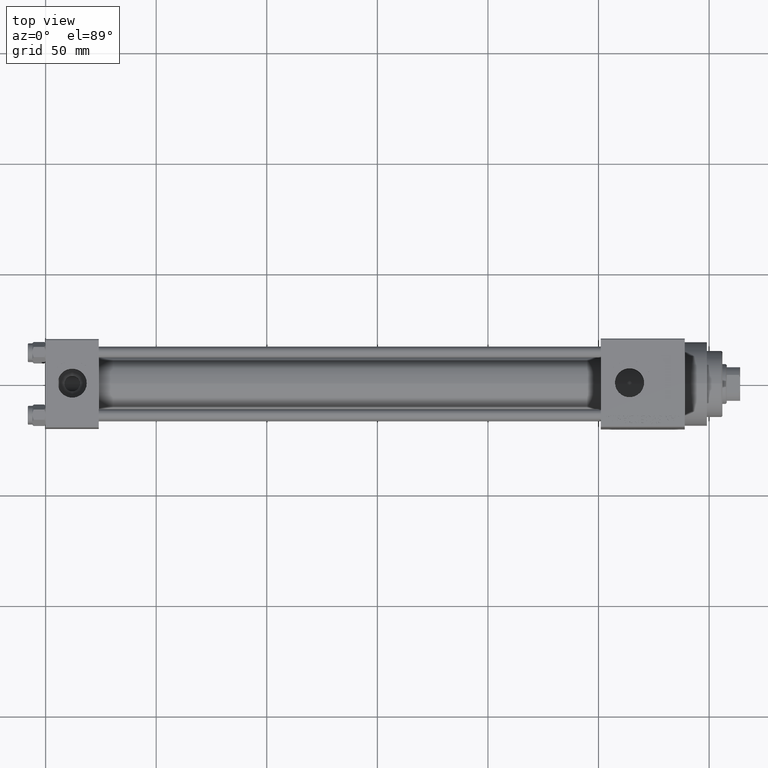
[diagram: clean part render]
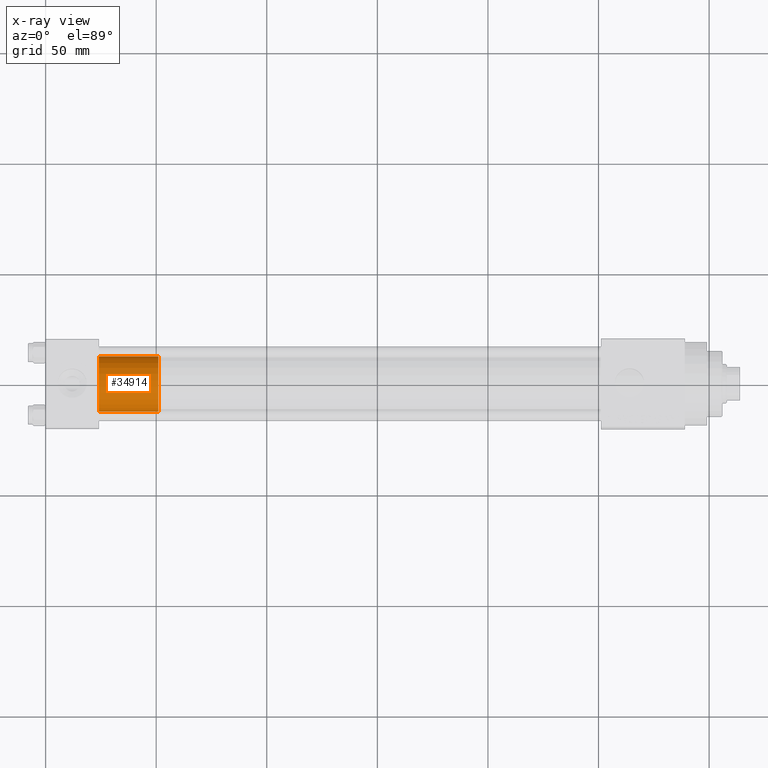
[diagram: x-ray — body ghosted, one internal face saturated and labeled with its STEP entity id]
A machine part, top view, then the same camera in x-ray: the body is ghosted and one INTERNAL B-rep face — a face not visible from any outside direction — is saturated and labeled: STEP entity #34914.
In plain terms, the highlighted cylindrical surface (edge-blend (fillet) strip) has radius 12.5 mm, axis along (-1, 0, 0).
Its self-contained STEP definition (entity closure, byte-faithful):
#988 = VECTOR ( 'NONE', #27024, 1000.000000000000000 ) ;
#4621 = VECTOR ( 'NONE', #26546, 1000.000000000000000 ) ;
#5838 = CARTESIAN_POINT ( 'NONE',  ( 12.50000000000000000, 1.530808498934191521E-15, 27.00000000000000000 ) ) ;
#7473 = DIRECTION ( 'NONE',  ( 1.000000000000000000, 0.000000000000000000, 0.000000000000000000 ) ) ;
#7776 = DIRECTION ( 'NONE',  ( 1.000000000000000000, 0.000000000000000000, 0.000000000000000000 ) ) ;
#8866 = VERTEX_POINT ( 'NONE', #44712 ) ;
#11344 = CARTESIAN_POINT ( 'NONE',  ( 0.000000000000000000, 0.000000000000000000, 0.000000000000000000 ) ) ;
#15260 = ORIENTED_EDGE ( 'NONE', *, *, #27447, .T. ) ;
#15267 = CARTESIAN_POINT ( 'NONE',  ( -12.50000000000000000, 0.000000000000000000, 27.00000000000000000 ) ) ;
#15382 = DIRECTION ( 'NONE',  ( 0.000000000000000000, 0.000000000000000000, 1.000000000000000000 ) ) ;
#15437 = CYLINDRICAL_SURFACE ( 'NONE', #18332, 12.50000000000000000 ) ;
#15463 = VERTEX_POINT ( 'NONE', #36288 ) ;
#18182 = DIRECTION ( 'NONE',  ( 0.000000000000000000, 0.000000000000000000, 1.000000000000000000 ) ) ;
#18332 = AXIS2_PLACEMENT_3D ( 'NONE', #36867, #44946, #23269 ) ;
#18743 = AXIS2_PLACEMENT_3D ( 'NONE', #25559, #18182, #7473 ) ;
#18841 = AXIS2_PLACEMENT_3D ( 'NONE', #11344, #15382, #7776 ) ;
#19495 = ORIENTED_EDGE ( 'NONE', *, *, #38213, .T. ) ;
#20362 = CIRCLE ( 'NONE', #18841, 12.50000000000000000 ) ;
#22282 = CARTESIAN_POINT ( 'NONE',  ( -12.50000000000000000, 0.000000000000000000, 27.00000000000000000 ) ) ;
#22320 = ORIENTED_EDGE ( 'NONE', *, *, #42481, .F. ) ;
#22467 = EDGE_LOOP ( 'NONE', ( #22320, #38049, #19495, #15260 ) ) ;
#22992 = VERTEX_POINT ( 'NONE', #15267 ) ;
#23269 = DIRECTION ( 'NONE',  ( -1.000000000000000000, 0.000000000000000000, 0.000000000000000000 ) ) ;
#24430 = EDGE_CURVE ( 'NONE', #22992, #32607, #25596, .T. ) ;
#25559 = CARTESIAN_POINT ( 'NONE',  ( 0.000000000000000000, 0.000000000000000000, 27.00000000000000000 ) ) ;
#25596 = CIRCLE ( 'NONE', #18743, 12.50000000000000000 ) ;
#26152 = FACE_OUTER_BOUND ( 'NONE', #22467, .T. ) ;
#26546 = DIRECTION ( 'NONE',  ( -0.000000000000000000, -0.000000000000000000, -1.000000000000000000 ) ) ;
#27024 = DIRECTION ( 'NONE',  ( -0.000000000000000000, -0.000000000000000000, -1.000000000000000000 ) ) ;
#27447 = EDGE_CURVE ( 'NONE', #8866, #15463, #20362, .T. ) ;
#32607 = VERTEX_POINT ( 'NONE', #36962 ) ;
#34914 = ADVANCED_FACE ( 'NONE', ( #26152 ), #15437, .T. ) ;
#36288 = CARTESIAN_POINT ( 'NONE',  ( 12.50000000000000000, 1.530808498934191521E-15, 0.000000000000000000 ) ) ;
#36867 = CARTESIAN_POINT ( 'NONE',  ( 0.000000000000000000, 0.000000000000000000, 27.00000000000000000 ) ) ;
#36962 = CARTESIAN_POINT ( 'NONE',  ( 12.50000000000000000, 1.530808498934191521E-15, 27.00000000000000000 ) ) ;
#37967 = LINE ( 'NONE', #5838, #988 ) ;
#38049 = ORIENTED_EDGE ( 'NONE', *, *, #24430, .F. ) ;
#38213 = EDGE_CURVE ( 'NONE', #22992, #8866, #44432, .T. ) ;
#42481 = EDGE_CURVE ( 'NONE', #32607, #15463, #37967, .T. ) ;
#44432 = LINE ( 'NONE', #22282, #4621 ) ;
#44712 = CARTESIAN_POINT ( 'NONE',  ( -12.50000000000000000, 0.000000000000000000, 0.000000000000000000 ) ) ;
#44946 = DIRECTION ( 'NONE',  ( -0.000000000000000000, -0.000000000000000000, -1.000000000000000000 ) ) ;